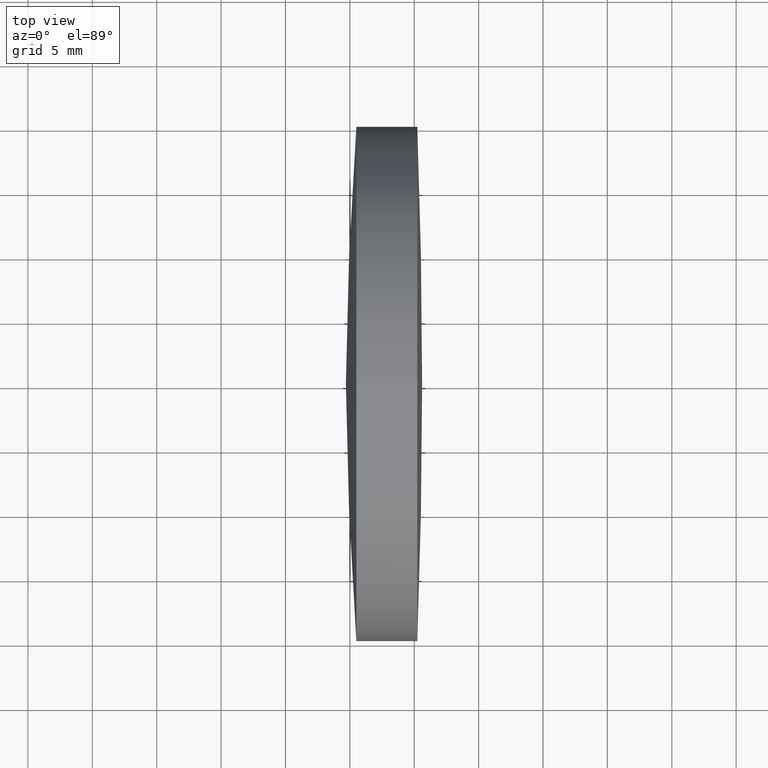
[diagram: clean part render]
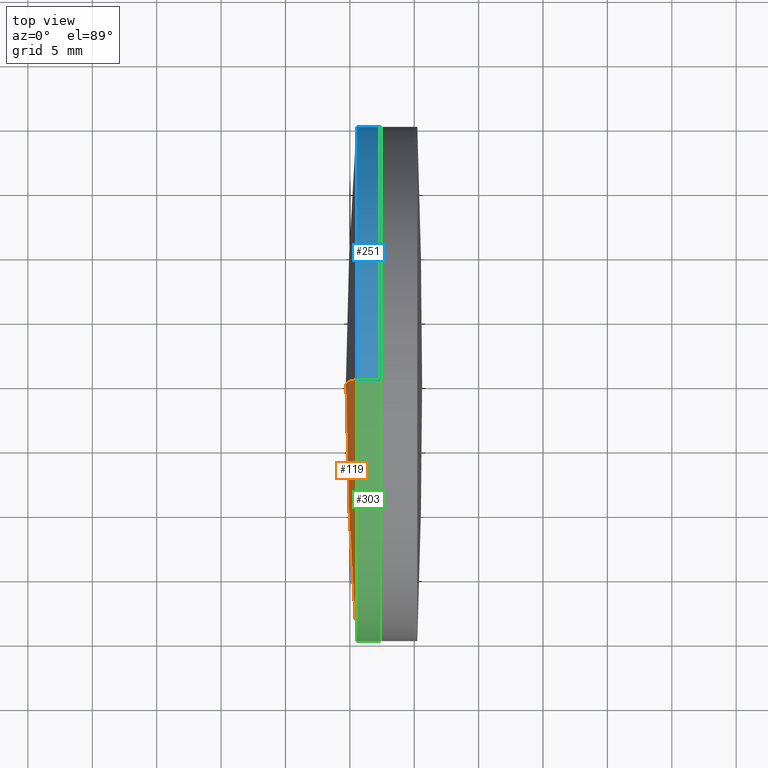
[diagram: same view with three faces highlighted in distinct colors, each labeled with its STEP entity id]
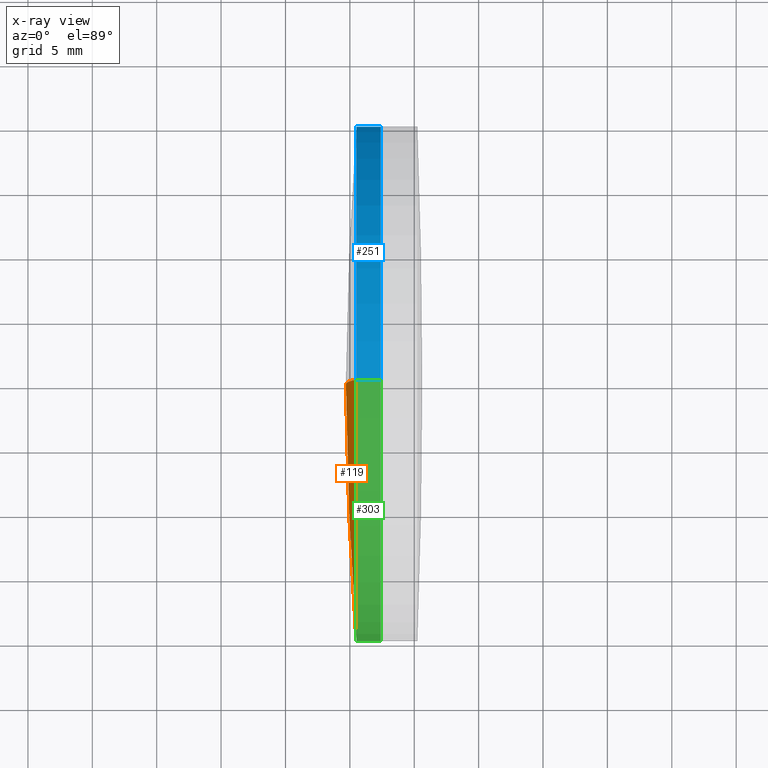
[diagram: x-ray of the same camera — body ghosted, the three highlighted faces saturated]
A machine part, top view with three faces highlighted in distinct colors.
The next image is the same camera in x-ray (body ghosted, the three faces saturated) — at least one of them is partly hidden behind the body in this view.
Their STEP definitions:

[orange] entity #119 — the highlighted spherical surface has radius 245.64 mm.
#1 = VERTEX_POINT ( 'NONE', #129 ) ;
#4 = SPHERICAL_SURFACE ( 'NONE', #308, 245.6400000000000400 ) ;
#13 = DIRECTION ( 'NONE',  ( 0.0000000000000000000, 1.000000000000000000, 0.0000000000000000000 ) ) ;
#25 = DIRECTION ( 'NONE',  ( 0.0000000000000000000, 0.0000000000000000000, 1.000000000000000000 ) ) ;
#37 = VERTEX_POINT ( 'NONE', #182 ) ;
#39 = CIRCLE ( 'NONE', #317, 19.99999999999986500 ) ;
#42 = AXIS2_PLACEMENT_3D ( 'NONE', #312, #133, #288 ) ;
#45 = EDGE_CURVE ( 'NONE', #122, #37, #39, .T. ) ;
#50 = CARTESIAN_POINT ( 'NONE',  ( 310.5066381123800700, 0.0000000000000000000, 0.0000000000000000000 ) ) ;
#81 = FACE_OUTER_BOUND ( 'NONE', #128, .T. ) ;
#85 = CARTESIAN_POINT ( 'NONE',  ( 310.5066381123801300, 2.449293598294697000E-015, -20.00000000000005700 ) ) ;
#91 = EDGE_CURVE ( 'NONE', #37, #1, #248, .T. ) ;
#119 = ADVANCED_FACE ( 'NONE', ( #81 ), #4, .T. ) ;
#122 = VERTEX_POINT ( 'NONE', #85 ) ;
#128 = EDGE_LOOP ( 'NONE', ( #269, #145, #212 ) ) ;
#129 = CARTESIAN_POINT ( 'NONE',  ( 309.6910846041468500, 0.0000000000000000000, -1.194186039121518800E-013 ) ) ;
#133 = DIRECTION ( 'NONE',  ( 0.0000000000000000000, -1.000000000000000000, 0.0000000000000000000 ) ) ;
#137 = AXIS2_PLACEMENT_3D ( 'NONE', #294, #139, #316 ) ;
#139 = DIRECTION ( 'NONE',  ( -0.0000000000000000000, 1.000000000000000000, 1.224646799147353200E-016 ) ) ;
#145 = ORIENTED_EDGE ( 'NONE', *, *, #45, .T. ) ;
#160 = CIRCLE ( 'NONE', #137, 245.6400000000000400 ) ;
#179 = DIRECTION ( 'NONE',  ( 0.0000000000000000000, 0.0000000000000000000, 1.000000000000000000 ) ) ;
#182 = CARTESIAN_POINT ( 'NONE',  ( 310.5066381123801300, 0.0000000000000000000, 19.99999999999992200 ) ) ;
#212 = ORIENTED_EDGE ( 'NONE', *, *, #91, .T. ) ;
#243 = DIRECTION ( 'NONE',  ( -1.000000000000000000, -0.0000000000000000000, -0.0000000000000000000 ) ) ;
#248 = CIRCLE ( 'NONE', #42, 245.6400000000000400 ) ;
#254 = CARTESIAN_POINT ( 'NONE',  ( 555.3310846041468900, 0.0000000000000000000, -1.344597158992796700E-013 ) ) ;
#269 = ORIENTED_EDGE ( 'NONE', *, *, #321, .F. ) ;
#288 = DIRECTION ( 'NONE',  ( 0.0000000000000000000, 0.0000000000000000000, -1.000000000000000000 ) ) ;
#294 = CARTESIAN_POINT ( 'NONE',  ( 555.3310846041468900, 0.0000000000000000000, -1.344597158992796700E-013 ) ) ;
#308 = AXIS2_PLACEMENT_3D ( 'NONE', #254, #13, #179 ) ;
#312 = CARTESIAN_POINT ( 'NONE',  ( 555.3310846041468900, 0.0000000000000000000, -1.344597158992796700E-013 ) ) ;
#316 = DIRECTION ( 'NONE',  ( 0.0000000000000000000, -1.224646799147353500E-016, 1.000000000000000000 ) ) ;
#317 = AXIS2_PLACEMENT_3D ( 'NONE', #50, #243, #25 ) ;
#321 = EDGE_CURVE ( 'NONE', #122, #1, #160, .T. ) ;

[blue] entity #251 — the highlighted cylindrical surface (partial cylindrical patch) has radius 20 mm, axis along (-1, -0, -0).
#7 = CARTESIAN_POINT ( 'NONE',  ( 310.5066381123800700, 0.0000000000000000000, 0.0000000000000000000 ) ) ;
#22 = DIRECTION ( 'NONE',  ( -1.000000000000000000, -0.0000000000000000000, -0.0000000000000000000 ) ) ;
#23 = AXIS2_PLACEMENT_3D ( 'NONE', #272, #229, #118 ) ;
#28 = AXIS2_PLACEMENT_3D ( 'NONE', #314, #22, #217 ) ;
#34 = CARTESIAN_POINT ( 'NONE',  ( 312.3747908760627200, 2.449293598294689900E-015, -19.99999999999986500 ) ) ;
#36 = AXIS2_PLACEMENT_3D ( 'NONE', #7, #174, #323 ) ;
#37 = VERTEX_POINT ( 'NONE', #182 ) ;
#51 = CYLINDRICAL_SURFACE ( 'NONE', #23, 19.99999999999986500 ) ;
#68 = EDGE_CURVE ( 'NONE', #146, #226, #309, .T. ) ;
#72 = ORIENTED_EDGE ( 'NONE', *, *, #180, .F. ) ;
#73 = LINE ( 'NONE', #231, #343 ) ;
#85 = CARTESIAN_POINT ( 'NONE',  ( 310.5066381123801300, 2.449293598294697000E-015, -20.00000000000005700 ) ) ;
#100 = ORIENTED_EDGE ( 'NONE', *, *, #195, .F. ) ;
#118 = DIRECTION ( 'NONE',  ( 0.0000000000000000000, 0.0000000000000000000, 1.000000000000000000 ) ) ;
#122 = VERTEX_POINT ( 'NONE', #85 ) ;
#141 = EDGE_CURVE ( 'NONE', #226, #122, #214, .T. ) ;
#146 = VERTEX_POINT ( 'NONE', #304 ) ;
#154 = ORIENTED_EDGE ( 'NONE', *, *, #141, .T. ) ;
#161 = ORIENTED_EDGE ( 'NONE', *, *, #68, .T. ) ;
#174 = DIRECTION ( 'NONE',  ( -1.000000000000000000, -0.0000000000000000000, -0.0000000000000000000 ) ) ;
#180 = EDGE_CURVE ( 'NONE', #37, #122, #221, .T. ) ;
#182 = CARTESIAN_POINT ( 'NONE',  ( 310.5066381123801300, 0.0000000000000000000, 19.99999999999992200 ) ) ;
#195 = EDGE_CURVE ( 'NONE', #146, #37, #73, .T. ) ;
#197 = DIRECTION ( 'NONE',  ( -1.000000000000000000, -0.0000000000000000000, -0.0000000000000000000 ) ) ;
#206 = VECTOR ( 'NONE', #328, 1000.000000000000000 ) ;
#214 = LINE ( 'NONE', #306, #206 ) ;
#217 = DIRECTION ( 'NONE',  ( 0.0000000000000000000, 0.0000000000000000000, 1.000000000000000000 ) ) ;
#221 = CIRCLE ( 'NONE', #36, 19.99999999999986500 ) ;
#226 = VERTEX_POINT ( 'NONE', #34 ) ;
#229 = DIRECTION ( 'NONE',  ( -1.000000000000000000, -0.0000000000000000000, -0.0000000000000000000 ) ) ;
#231 = CARTESIAN_POINT ( 'NONE',  ( 124.5233095260452400, 0.0000000000000000000, 19.99999999999986500 ) ) ;
#251 = ADVANCED_FACE ( 'NONE', ( #334 ), #51, .T. ) ;
#272 = CARTESIAN_POINT ( 'NONE',  ( 124.5233095260452400, 0.0000000000000000000, 0.0000000000000000000 ) ) ;
#304 = CARTESIAN_POINT ( 'NONE',  ( 312.3747908760627200, 0.0000000000000000000, 19.99999999999986500 ) ) ;
#306 = CARTESIAN_POINT ( 'NONE',  ( 124.5233095260452400, 2.449293598294689900E-015, -19.99999999999986500 ) ) ;
#309 = CIRCLE ( 'NONE', #28, 19.99999999999986500 ) ;
#314 = CARTESIAN_POINT ( 'NONE',  ( 312.3747908760627200, 0.0000000000000000000, 0.0000000000000000000 ) ) ;
#323 = DIRECTION ( 'NONE',  ( 0.0000000000000000000, 0.0000000000000000000, 1.000000000000000000 ) ) ;
#328 = DIRECTION ( 'NONE',  ( -1.000000000000000000, -0.0000000000000000000, -0.0000000000000000000 ) ) ;
#334 = FACE_OUTER_BOUND ( 'NONE', #339, .T. ) ;
#339 = EDGE_LOOP ( 'NONE', ( #161, #154, #72, #100 ) ) ;
#343 = VECTOR ( 'NONE', #197, 1000.000000000000000 ) ;

[green] entity #303 — the highlighted cylindrical surface (partial cylindrical patch) has radius 20 mm, axis along (-1, -0, -0).
#10 = CARTESIAN_POINT ( 'NONE',  ( 312.3747908760627200, 0.0000000000000000000, 0.0000000000000000000 ) ) ;
#20 = CARTESIAN_POINT ( 'NONE',  ( 124.5233095260452400, 0.0000000000000000000, 0.0000000000000000000 ) ) ;
#25 = DIRECTION ( 'NONE',  ( 0.0000000000000000000, 0.0000000000000000000, 1.000000000000000000 ) ) ;
#34 = CARTESIAN_POINT ( 'NONE',  ( 312.3747908760627200, 2.449293598294689900E-015, -19.99999999999986500 ) ) ;
#37 = VERTEX_POINT ( 'NONE', #182 ) ;
#39 = CIRCLE ( 'NONE', #317, 19.99999999999986500 ) ;
#45 = EDGE_CURVE ( 'NONE', #122, #37, #39, .T. ) ;
#50 = CARTESIAN_POINT ( 'NONE',  ( 310.5066381123800700, 0.0000000000000000000, 0.0000000000000000000 ) ) ;
#57 = ORIENTED_EDGE ( 'NONE', *, *, #141, .F. ) ;
#73 = LINE ( 'NONE', #231, #343 ) ;
#85 = CARTESIAN_POINT ( 'NONE',  ( 310.5066381123801300, 2.449293598294697000E-015, -20.00000000000005700 ) ) ;
#89 = ORIENTED_EDGE ( 'NONE', *, *, #45, .F. ) ;
#116 = ORIENTED_EDGE ( 'NONE', *, *, #153, .T. ) ;
#122 = VERTEX_POINT ( 'NONE', #85 ) ;
#134 = DIRECTION ( 'NONE',  ( -1.000000000000000000, -0.0000000000000000000, -0.0000000000000000000 ) ) ;
#141 = EDGE_CURVE ( 'NONE', #226, #122, #214, .T. ) ;
#143 = EDGE_LOOP ( 'NONE', ( #57, #116, #158, #89 ) ) ;
#146 = VERTEX_POINT ( 'NONE', #304 ) ;
#153 = EDGE_CURVE ( 'NONE', #226, #146, #271, .T. ) ;
#158 = ORIENTED_EDGE ( 'NONE', *, *, #195, .T. ) ;
#159 = AXIS2_PLACEMENT_3D ( 'NONE', #20, #134, #213 ) ;
#164 = CYLINDRICAL_SURFACE ( 'NONE', #159, 19.99999999999986500 ) ;
#170 = FACE_OUTER_BOUND ( 'NONE', #143, .T. ) ;
#175 = DIRECTION ( 'NONE',  ( -1.000000000000000000, -0.0000000000000000000, -0.0000000000000000000 ) ) ;
#182 = CARTESIAN_POINT ( 'NONE',  ( 310.5066381123801300, 0.0000000000000000000, 19.99999999999992200 ) ) ;
#195 = EDGE_CURVE ( 'NONE', #146, #37, #73, .T. ) ;
#197 = DIRECTION ( 'NONE',  ( -1.000000000000000000, -0.0000000000000000000, -0.0000000000000000000 ) ) ;
#206 = VECTOR ( 'NONE', #328, 1000.000000000000000 ) ;
#213 = DIRECTION ( 'NONE',  ( 0.0000000000000000000, 0.0000000000000000000, 1.000000000000000000 ) ) ;
#214 = LINE ( 'NONE', #306, #206 ) ;
#226 = VERTEX_POINT ( 'NONE', #34 ) ;
#231 = CARTESIAN_POINT ( 'NONE',  ( 124.5233095260452400, 0.0000000000000000000, 19.99999999999986500 ) ) ;
#243 = DIRECTION ( 'NONE',  ( -1.000000000000000000, -0.0000000000000000000, -0.0000000000000000000 ) ) ;
#271 = CIRCLE ( 'NONE', #326, 19.99999999999986500 ) ;
#303 = ADVANCED_FACE ( 'NONE', ( #170 ), #164, .T. ) ;
#304 = CARTESIAN_POINT ( 'NONE',  ( 312.3747908760627200, 0.0000000000000000000, 19.99999999999986500 ) ) ;
#306 = CARTESIAN_POINT ( 'NONE',  ( 124.5233095260452400, 2.449293598294689900E-015, -19.99999999999986500 ) ) ;
#317 = AXIS2_PLACEMENT_3D ( 'NONE', #50, #243, #25 ) ;
#325 = DIRECTION ( 'NONE',  ( 0.0000000000000000000, 0.0000000000000000000, 1.000000000000000000 ) ) ;
#326 = AXIS2_PLACEMENT_3D ( 'NONE', #10, #175, #325 ) ;
#328 = DIRECTION ( 'NONE',  ( -1.000000000000000000, -0.0000000000000000000, -0.0000000000000000000 ) ) ;
#343 = VECTOR ( 'NONE', #197, 1000.000000000000000 ) ;